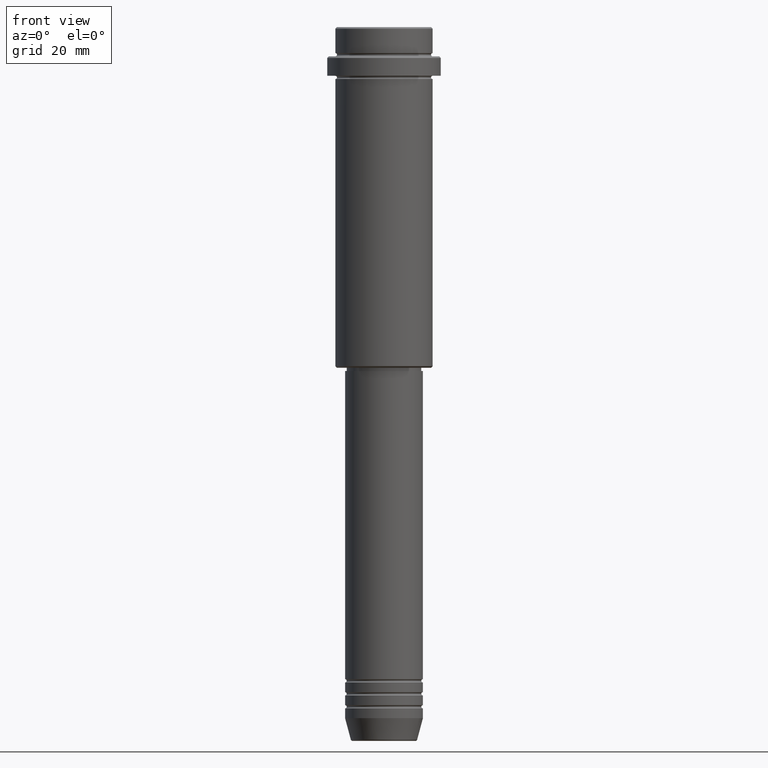
[diagram: clean part render]
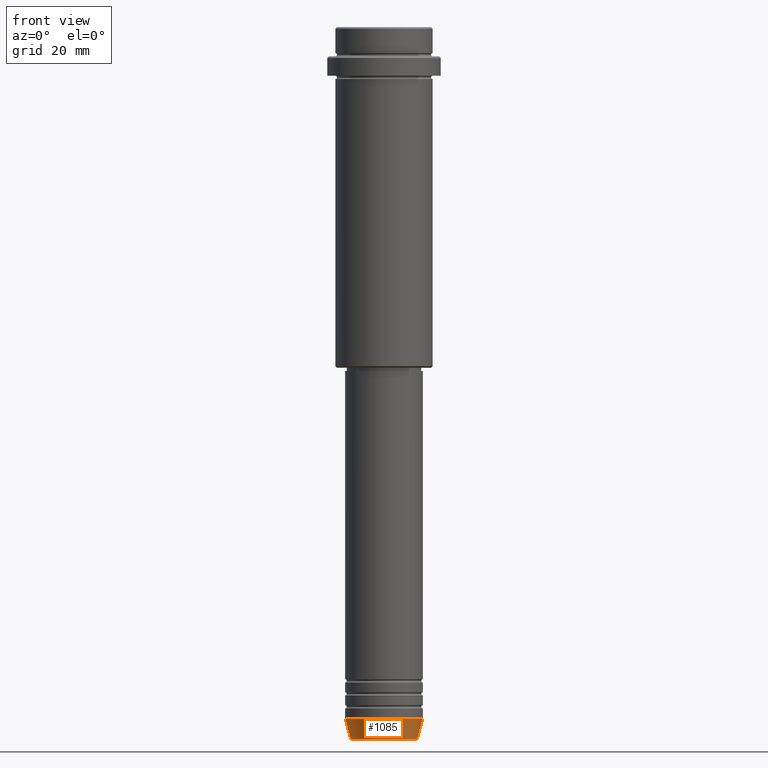
[diagram: same view with one face highlighted and labeled with its STEP entity id]
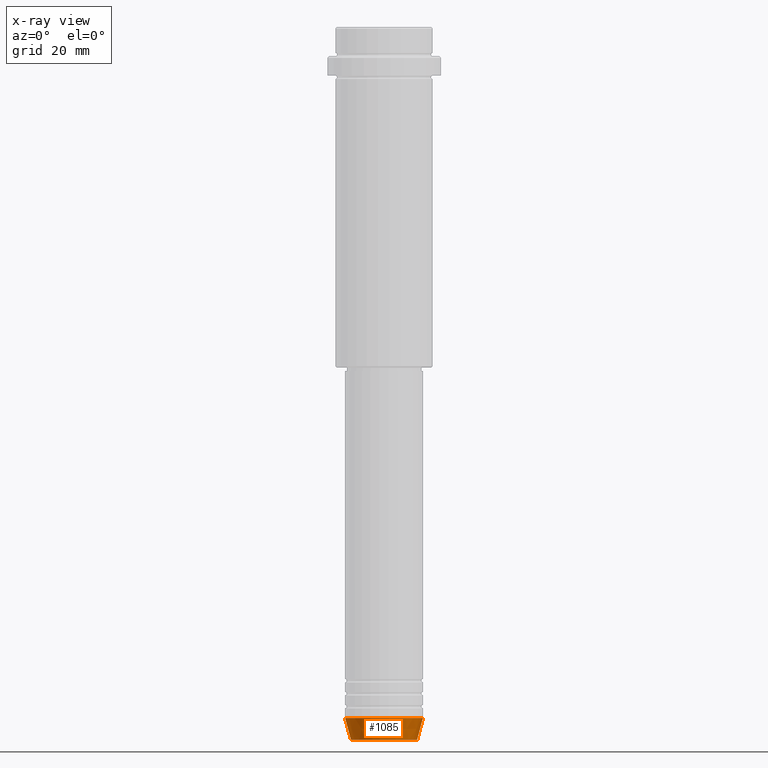
[diagram: x-ray of the same camera — body ghosted, the highlighted face saturated]
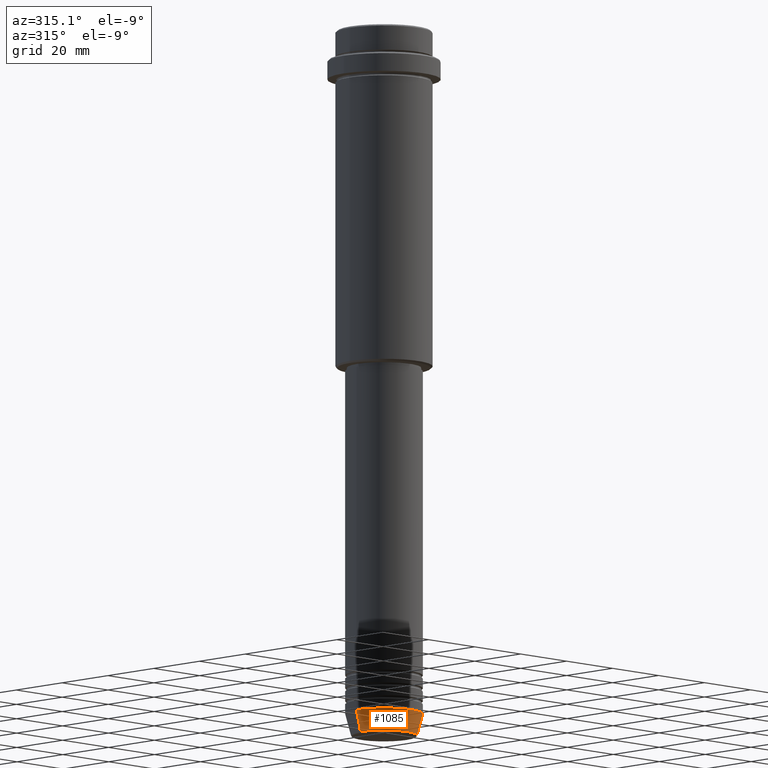
[diagram: same view with one face highlighted and labeled with its STEP entity id]
A machine part, front view. The second image highlights one B-rep face of the part: STEP entity #1085.
The next image is the same camera in x-ray: the body ghosted, the highlighted face saturated — about 0% of this face is hidden behind the body in this view.
A second angle (auxiliary view) of the same face is appended — the face is thin or edge-on in the first view.
In plain terms, the highlighted conical surface has half-angle 15 deg.
Its self-contained STEP definition (entity closure, byte-faithful):
#22 = ORIENTED_EDGE ( 'NONE', *, *, #935, .T. ) ;
#45 = ORIENTED_EDGE ( 'NONE', *, *, #1401, .T. ) ;
#56 = VERTEX_POINT ( 'NONE', #514 ) ;
#126 = LINE ( 'NONE', #557, #696 ) ;
#128 = EDGE_LOOP ( 'NONE', ( #1335, #45, #22, #710 ) ) ;
#164 = CARTESIAN_POINT ( 'NONE',  ( 12.00000000000000000, 0.000000000000000000, -213.0000000000000284 ) ) ;
#280 = LINE ( 'NONE', #164, #1410 ) ;
#293 = DIRECTION ( 'NONE',  ( -0.000000000000000000, -0.000000000000000000, 1.000000000000000000 ) ) ;
#325 = CARTESIAN_POINT ( 'NONE',  ( 0.000000000000000000, 0.000000000000000000, -213.0000000000000284 ) ) ;
#343 = VERTEX_POINT ( 'NONE', #613 ) ;
#353 = CARTESIAN_POINT ( 'NONE',  ( 12.00000000000000000, 0.000000000000000000, -213.0000000000000284 ) ) ;
#500 = DIRECTION ( 'NONE',  ( 1.000000000000000000, 0.000000000000000000, 0.000000000000000000 ) ) ;
#514 = CARTESIAN_POINT ( 'NONE',  ( 10.22365507213720015, 0.000000000000000000, -219.6294095225512706 ) ) ;
#544 = DIRECTION ( 'NONE',  ( 1.000000000000000000, 0.000000000000000000, 0.000000000000000000 ) ) ;
#557 = CARTESIAN_POINT ( 'NONE',  ( -12.00000000000000000, 1.469576158976823947E-15, -213.0000000000000284 ) ) ;
#582 = CARTESIAN_POINT ( 'NONE',  ( 0.000000000000000000, 0.000000000000000000, -219.6294095225512706 ) ) ;
#613 = CARTESIAN_POINT ( 'NONE',  ( -12.00000000000000000, 1.469576158976823947E-15, -213.0000000000000284 ) ) ;
#624 = VERTEX_POINT ( 'NONE', #353 ) ;
#646 = EDGE_CURVE ( 'NONE', #1237, #343, #126, .T. ) ;
#696 = VECTOR ( 'NONE', #998, 1000.000000000000114 ) ;
#710 = ORIENTED_EDGE ( 'NONE', *, *, #1251, .F. ) ;
#745 = CIRCLE ( 'NONE', #953, 10.22365507213720015 ) ;
#772 = DIRECTION ( 'NONE',  ( -0.000000000000000000, -0.000000000000000000, 1.000000000000000000 ) ) ;
#793 = DIRECTION ( 'NONE',  ( 0.2588190451025205174, 0.000000000000000000, 0.9659258262890684232 ) ) ;
#935 = EDGE_CURVE ( 'NONE', #56, #624, #280, .T. ) ;
#953 = AXIS2_PLACEMENT_3D ( 'NONE', #582, #1281, #1038 ) ;
#998 = DIRECTION ( 'NONE',  ( -0.2588190451025205174, 3.169619151431761243E-17, 0.9659258262890684232 ) ) ;
#1015 = CARTESIAN_POINT ( 'NONE',  ( -10.22365507213720015, 1.360806402472383139E-15, -219.6294095225512706 ) ) ;
#1038 = DIRECTION ( 'NONE',  ( 1.000000000000000000, 0.000000000000000000, 0.000000000000000000 ) ) ;
#1085 = ADVANCED_FACE ( 'NONE', ( #1273 ), #1257, .T. ) ;
#1117 = CARTESIAN_POINT ( 'NONE',  ( 0.000000000000000000, 0.000000000000000000, -213.0000000000000284 ) ) ;
#1161 = AXIS2_PLACEMENT_3D ( 'NONE', #1117, #772, #544 ) ;
#1237 = VERTEX_POINT ( 'NONE', #1015 ) ;
#1251 = EDGE_CURVE ( 'NONE', #343, #624, #1321, .T. ) ;
#1257 = CONICAL_SURFACE ( 'NONE', #1298, 12.00000000000000000, 0.2617993877991491303 ) ;
#1273 = FACE_OUTER_BOUND ( 'NONE', #128, .T. ) ;
#1281 = DIRECTION ( 'NONE',  ( -0.000000000000000000, -0.000000000000000000, 1.000000000000000000 ) ) ;
#1298 = AXIS2_PLACEMENT_3D ( 'NONE', #325, #293, #500 ) ;
#1321 = CIRCLE ( 'NONE', #1161, 12.00000000000000000 ) ;
#1335 = ORIENTED_EDGE ( 'NONE', *, *, #646, .F. ) ;
#1401 = EDGE_CURVE ( 'NONE', #1237, #56, #745, .T. ) ;
#1410 = VECTOR ( 'NONE', #793, 1000.000000000000114 ) ;